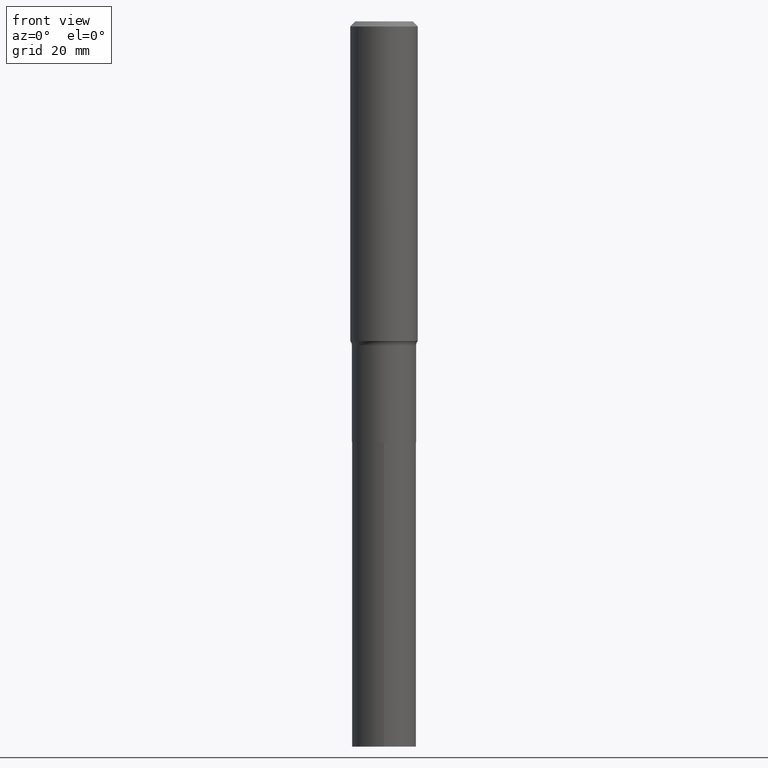
[diagram: clean part render]
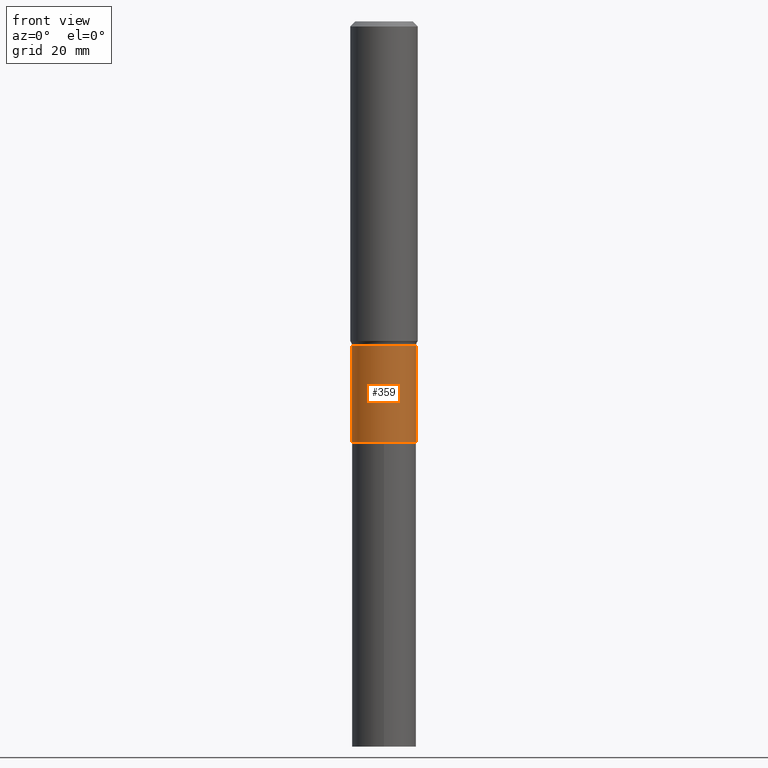
[diagram: same view with one face highlighted and labeled with its STEP entity id]
A machine part, front view. The second image highlights one B-rep face of the part: STEP entity #359.
In plain terms, the highlighted cylindrical surface (edge-blend (fillet) strip) has radius 9.525 mm, axis along (-0, 0, 1).
Its self-contained STEP definition (entity closure, byte-faithful):
#2 = CARTESIAN_POINT ( 'NONE',  ( 0.000000000000000000, 0.000000000000000000, 0.000000000000000000 ) ) ;
#7 = CIRCLE ( 'NONE', #277, 0.3750000000000001110 ) ;
#29 = CARTESIAN_POINT ( 'NONE',  ( 0.3750000000000001110, -1.975864204464724661E-14, -4.909100000000002240 ) ) ;
#33 = EDGE_CURVE ( 'NONE', #133, #59, #258, .T. ) ;
#59 = VERTEX_POINT ( 'NONE', #85 ) ;
#67 = EDGE_LOOP ( 'NONE', ( #390, #251, #135, #142 ) ) ;
#75 = DIRECTION ( 'NONE',  ( -2.445468806185136597E-29, 3.491481338843145583E-15, 1.000000000000000000 ) ) ;
#85 = CARTESIAN_POINT ( 'NONE',  ( 0.3749999999999999445, -1.582374257577101506E-14, -3.782100000000001128 ) ) ;
#124 = LINE ( 'NONE', #271, #188 ) ;
#133 = VERTEX_POINT ( 'NONE', #377 ) ;
#135 = ORIENTED_EDGE ( 'NONE', *, *, #331, .T. ) ;
#136 = AXIS2_PLACEMENT_3D ( 'NONE', #306, #75, #300 ) ;
#142 = ORIENTED_EDGE ( 'NONE', *, *, #33, .F. ) ;
#144 = DIRECTION ( 'NONE',  ( -2.445468806185136597E-29, 3.491481338843145583E-15, 1.000000000000000000 ) ) ;
#145 = CARTESIAN_POINT ( 'NONE',  ( 1.200505091644346010E-28, -1.714003104051489344E-14, -4.909100000000002240 ) ) ;
#161 = LINE ( 'NONE', #313, #269 ) ;
#162 = DIRECTION ( 'NONE',  ( -2.445468806185136877E-29, 3.491481338843145188E-15, 1.000000000000000000 ) ) ;
#168 = CYLINDRICAL_SURFACE ( 'NONE', #219, 0.3750000000000000555 ) ;
#183 = EDGE_CURVE ( 'NONE', #461, #133, #124, .T. ) ;
#188 = VECTOR ( 'NONE', #419, 39.37007874015748143 ) ;
#215 = DIRECTION ( 'NONE',  ( -2.445468806185136597E-29, 3.491481338843145583E-15, 1.000000000000000000 ) ) ;
#219 = AXIS2_PLACEMENT_3D ( 'NONE', #2, #215, #332 ) ;
#251 = ORIENTED_EDGE ( 'NONE', *, *, #441, .T. ) ;
#253 = CARTESIAN_POINT ( 'NONE',  ( -0.3750000000000001110, -1.250804604697640197E-14, -4.909100000000002240 ) ) ;
#258 = CIRCLE ( 'NONE', #136, 0.3749999999999999445 ) ;
#269 = VECTOR ( 'NONE', #162, 39.37007874015748143 ) ;
#271 = CARTESIAN_POINT ( 'NONE',  ( -0.3750000000000000555, 2.664535259100376091E-15, -1.844600658845589598E-29 ) ) ;
#277 = AXIS2_PLACEMENT_3D ( 'NONE', #145, #144, #386 ) ;
#279 = FACE_OUTER_BOUND ( 'NONE', #67, .T. ) ;
#300 = DIRECTION ( 'NONE',  ( 1.000000000000000000, -6.982962677686269077E-15, 0.000000000000000000 ) ) ;
#306 = CARTESIAN_POINT ( 'NONE',  ( 9.249007571872807985E-29, -1.320513157163866504E-14, -3.782100000000001128 ) ) ;
#313 = CARTESIAN_POINT ( 'NONE',  ( 0.3750000000000000555, -2.618611004132350016E-15, 1.828566290923476203E-29 ) ) ;
#331 = EDGE_CURVE ( 'NONE', #395, #59, #161, .T. ) ;
#332 = DIRECTION ( 'NONE',  ( 1.000000000000000000, -6.982962677686265922E-15, 4.876176775795935793E-29 ) ) ;
#359 = ADVANCED_FACE ( 'NONE', ( #279 ), #168, .T. ) ;
#377 = CARTESIAN_POINT ( 'NONE',  ( -0.3749999999999999445, -1.250804604697640197E-14, -3.782100000000001128 ) ) ;
#386 = DIRECTION ( 'NONE',  ( 1.000000000000000000, -6.982962677686270655E-15, 0.000000000000000000 ) ) ;
#390 = ORIENTED_EDGE ( 'NONE', *, *, #183, .F. ) ;
#395 = VERTEX_POINT ( 'NONE', #29 ) ;
#419 = DIRECTION ( 'NONE',  ( -2.445468806185136877E-29, 3.491481338843145188E-15, 1.000000000000000000 ) ) ;
#441 = EDGE_CURVE ( 'NONE', #461, #395, #7, .T. ) ;
#461 = VERTEX_POINT ( 'NONE', #253 ) ;